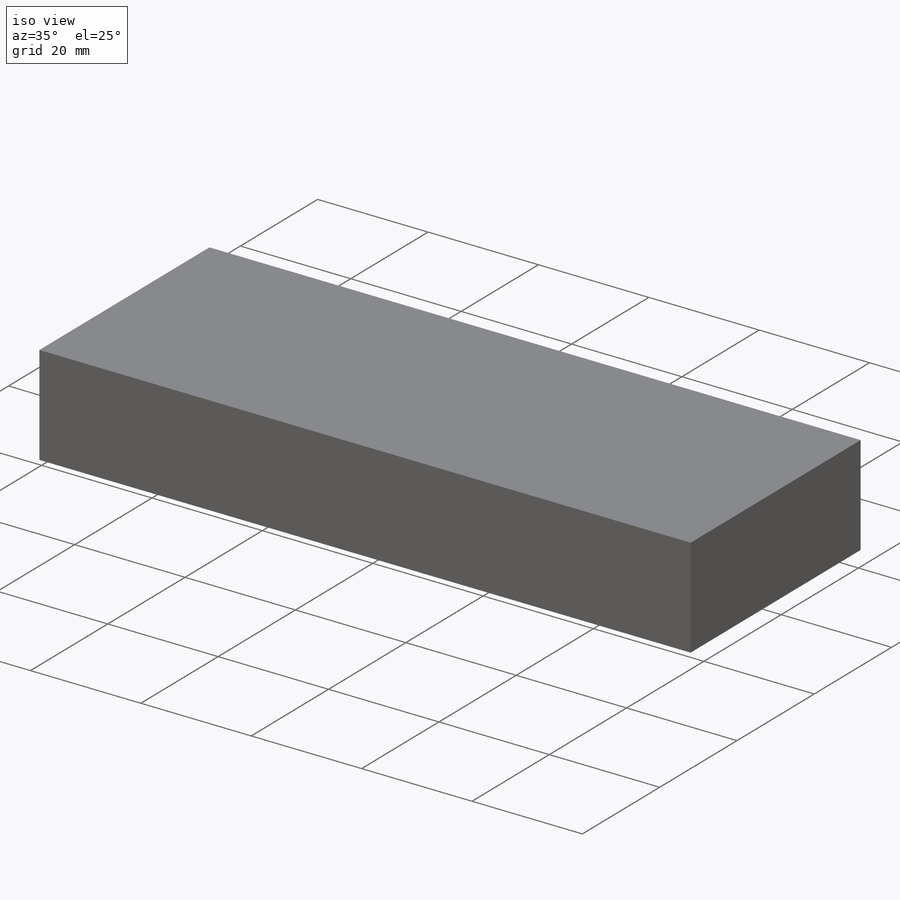
[diagram: iso view]
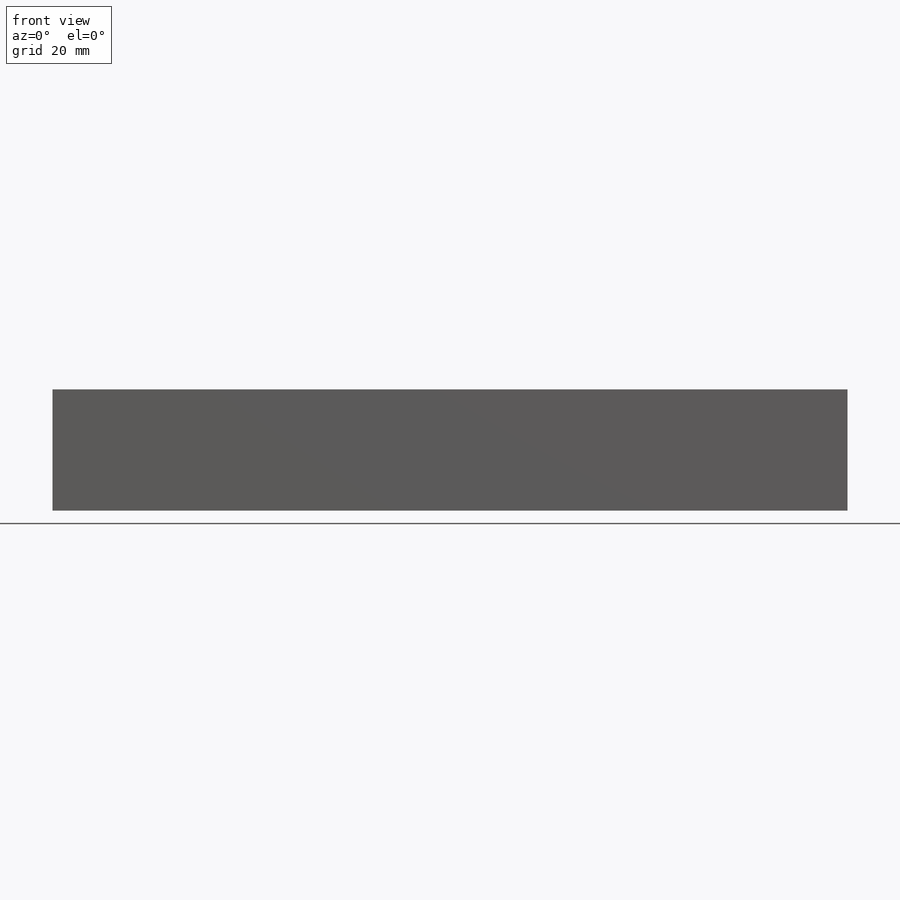
[diagram: front view]
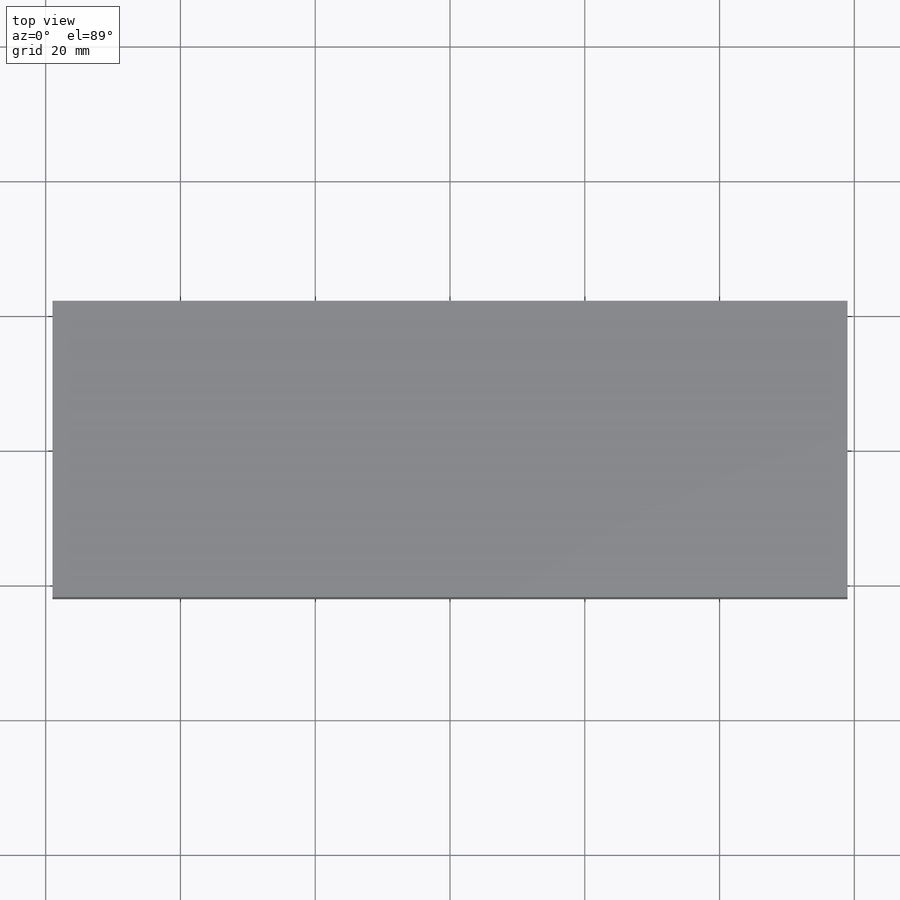
[diagram: top view]
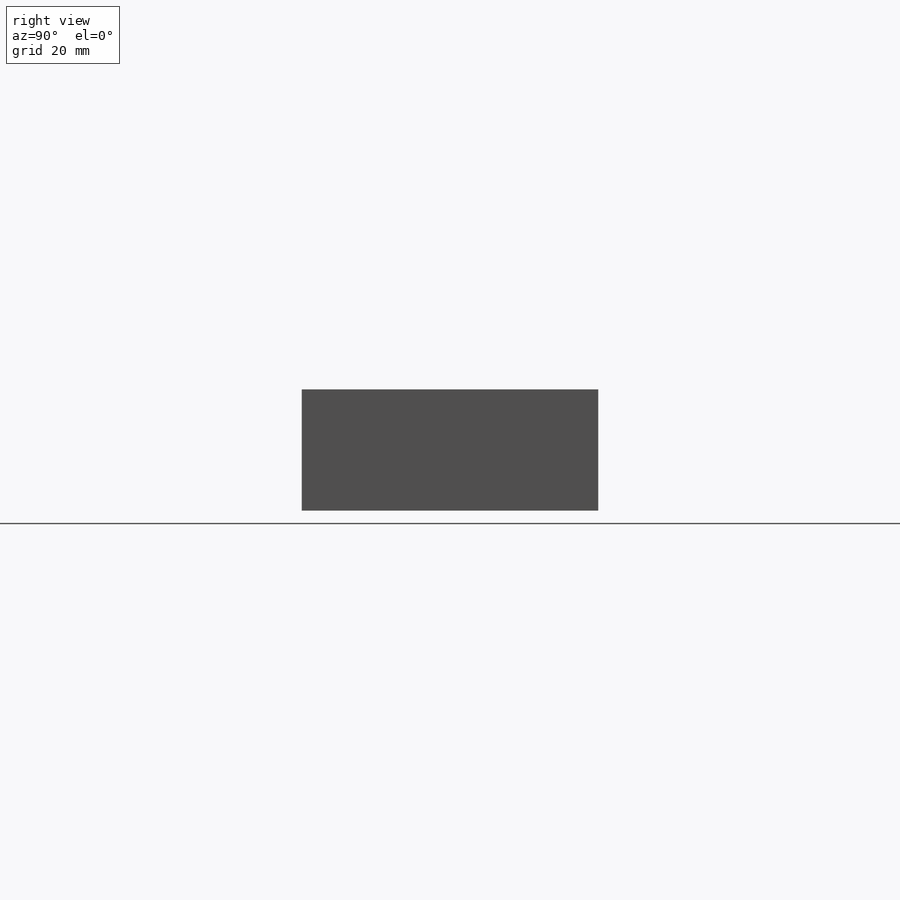
[diagram: right view]
SOLIDWORKS PART (.sldprt)
format: sldprt  version: not decoded by parser v0  size: 414,720 bytes
history: native  units: mm
features: sketch x15, material x1, extrude x1 (+15 scaffold rows collapsed)
feature tree (32):
  scaffold x15  (default folders/planes/origin — collapsed)
  material  "Material <not specified>"
  sketch  "Sketch1"  dims[D1=118.0mm D2=44.0mm]
  extrude  "Extrude1"  Depth=18mm
  sketch  "Sketch3"  dims[D1=5.0mm]
  sketch  "Sketch4"  dims[D1=5.0mm]
  sketch  "Sketch5"
  sketch  "Sketch6"
  sketch  "Sketch7"  dims[D1=5.0mm]
  sketch  "Sketch9"  dims[D1=5.0mm]
  sketch  "Sketch10"
  sketch  "Sketch11"
  sketch  "Sketch16"  dims[D1=44.0mm]
  sketch  "Sketch17"  dims[D1=44.0mm D2=20.0mm D3=44.0mm]
  sketch  "Sketch20"
  sketch  "Sketch21"
  sketch  "Sketch22"  dims[D1=9.0mm]
  sketch  "Sketch23"
decode coverage: 9 of 16 modeling features carry decoded parameters
note: suppression state not decoded; provenance and decode notes live in map.json
